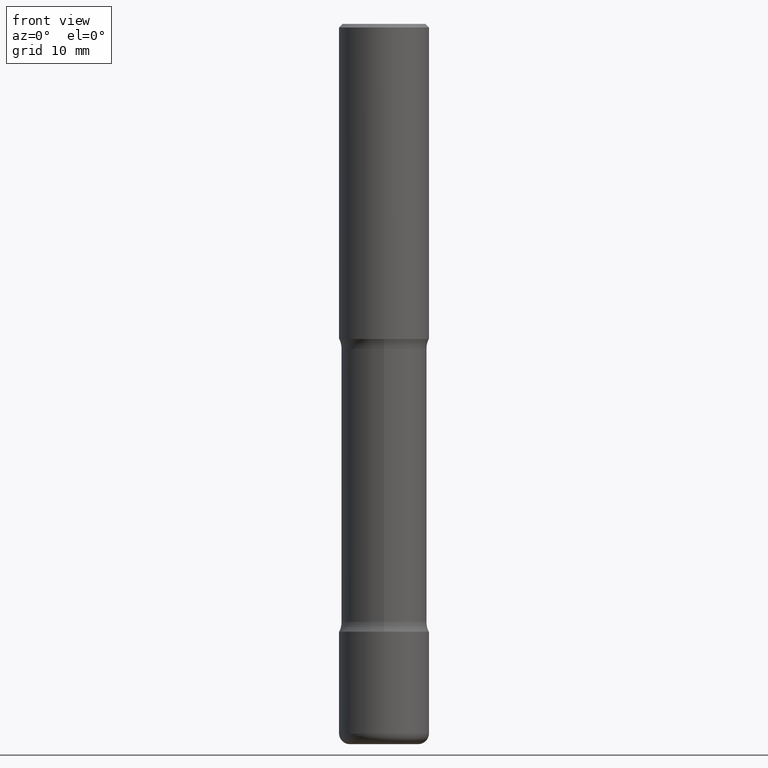
[diagram: clean part render]
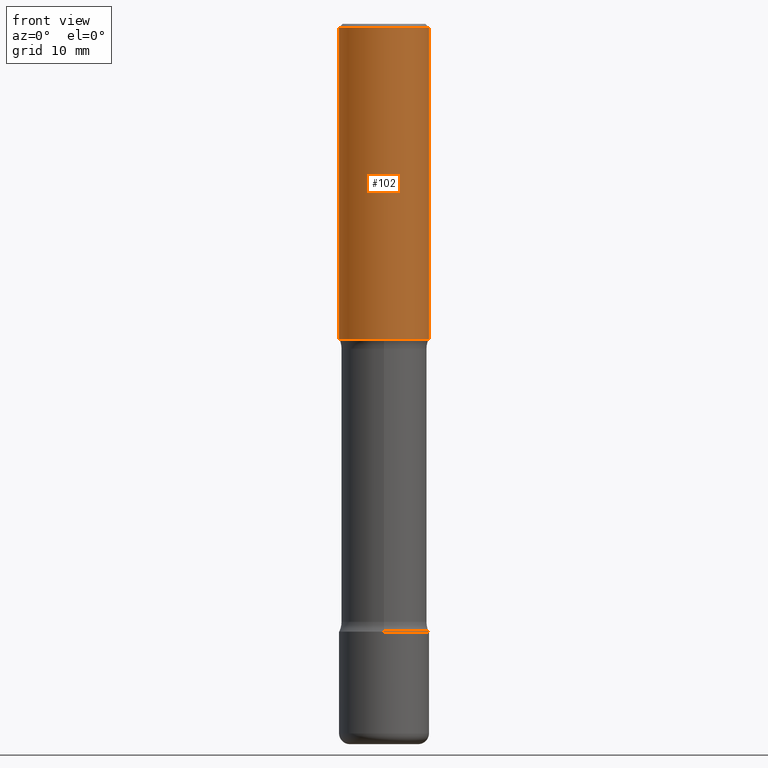
[diagram: same view with one face highlighted and labeled with its STEP entity id]
A machine part, front view. The second image highlights one B-rep face of the part: STEP entity #102.
In plain terms, the highlighted cylindrical surface (partial cylindrical patch) has radius 6.35 mm, axis along (-0, 0, 1).
Its self-contained STEP definition (entity closure, byte-faithful):
#39 = VERTEX_POINT ( 'NONE', #61 ) ;
#60 = VERTEX_POINT ( 'NONE', #498 ) ;
#61 = CARTESIAN_POINT ( 'NONE',  ( 0.2500000000000000000, -7.855833012397068982E-15, -1.749999999999999334 ) ) ;
#75 = ORIENTED_EDGE ( 'NONE', *, *, #334, .F. ) ;
#92 = ORIENTED_EDGE ( 'NONE', *, *, #544, .T. ) ;
#100 = DIRECTION ( 'NONE',  ( -2.445468806185136597E-29, 3.491481338843145583E-15, 1.000000000000000000 ) ) ;
#102 = ADVANCED_FACE ( 'NONE', ( #140 ), #487, .T. ) ;
#103 = VECTOR ( 'NONE', #333, 39.37007874015748143 ) ;
#109 = AXIS2_PLACEMENT_3D ( 'NONE', #447, #100, #267 ) ;
#115 = DIRECTION ( 'NONE',  ( -2.445468806185136877E-29, 3.491481338843145188E-15, 1.000000000000000000 ) ) ;
#132 = VERTEX_POINT ( 'NONE', #502 ) ;
#140 = FACE_OUTER_BOUND ( 'NONE', #396, .T. ) ;
#149 = VECTOR ( 'NONE', #115, 39.37007874015748143 ) ;
#152 = EDGE_CURVE ( 'NONE', #132, #375, #270, .T. ) ;
#154 = CARTESIAN_POINT ( 'NONE',  ( 4.890937612370273159E-31, -6.982962677686291609E-17, -0.02000000000000000042 ) ) ;
#182 = EDGE_CURVE ( 'NONE', #39, #375, #511, .T. ) ;
#215 = ORIENTED_EDGE ( 'NONE', *, *, #152, .F. ) ;
#252 = DIRECTION ( 'NONE',  ( -2.445468806185136597E-29, 3.491481338843145583E-15, 1.000000000000000000 ) ) ;
#267 = DIRECTION ( 'NONE',  ( 1.000000000000000000, -6.982962677686266711E-15, 4.876176775795935793E-29 ) ) ;
#270 = CIRCLE ( 'NONE', #442, 0.2499999999999996114 ) ;
#288 = CIRCLE ( 'NONE', #454, 0.2500000000000000000 ) ;
#311 = CARTESIAN_POINT ( 'NONE',  ( 4.279570410823987923E-29, -6.110092342975502304E-15, -1.749999999999999334 ) ) ;
#332 = CARTESIAN_POINT ( 'NONE',  ( -0.2499999999999998057, 1.776356839400249084E-15, -1.229733772563725465E-29 ) ) ;
#333 = DIRECTION ( 'NONE',  ( -2.445468806185136877E-29, 3.491481338843145188E-15, 1.000000000000000000 ) ) ;
#334 = EDGE_CURVE ( 'NONE', #60, #132, #549, .T. ) ;
#343 = ORIENTED_EDGE ( 'NONE', *, *, #182, .T. ) ;
#375 = VERTEX_POINT ( 'NONE', #509 ) ;
#396 = EDGE_LOOP ( 'NONE', ( #75, #92, #343, #215 ) ) ;
#416 = DIRECTION ( 'NONE',  ( 1.000000000000000000, -6.982962677686267499E-15, 0.000000000000000000 ) ) ;
#420 = DIRECTION ( 'NONE',  ( -2.445468806185136597E-29, 3.491481338843145583E-15, 1.000000000000000000 ) ) ;
#428 = DIRECTION ( 'NONE',  ( 1.000000000000000000, -6.982962677686266711E-15, 0.000000000000000000 ) ) ;
#442 = AXIS2_PLACEMENT_3D ( 'NONE', #154, #420, #416 ) ;
#447 = CARTESIAN_POINT ( 'NONE',  ( 0.000000000000000000, 0.000000000000000000, 0.000000000000000000 ) ) ;
#454 = AXIS2_PLACEMENT_3D ( 'NONE', #311, #252, #428 ) ;
#487 = CYLINDRICAL_SURFACE ( 'NONE', #109, 0.2499999999999998057 ) ;
#498 = CARTESIAN_POINT ( 'NONE',  ( -0.2500000000000000555, -1.313604145475929576E-15, -1.749999999999999334 ) ) ;
#502 = CARTESIAN_POINT ( 'NONE',  ( -0.2499999999999996114, 1.675911042644701210E-15, -0.02000000000000000042 ) ) ;
#504 = CARTESIAN_POINT ( 'NONE',  ( 0.2499999999999998057, -1.745740669421565297E-15, 1.219044193948982967E-29 ) ) ;
#509 = CARTESIAN_POINT ( 'NONE',  ( 0.2499999999999996114, -1.784954126219743033E-15, -0.02000000000000000042 ) ) ;
#511 = LINE ( 'NONE', #504, #103 ) ;
#544 = EDGE_CURVE ( 'NONE', #60, #39, #288, .T. ) ;
#549 = LINE ( 'NONE', #332, #149 ) ;